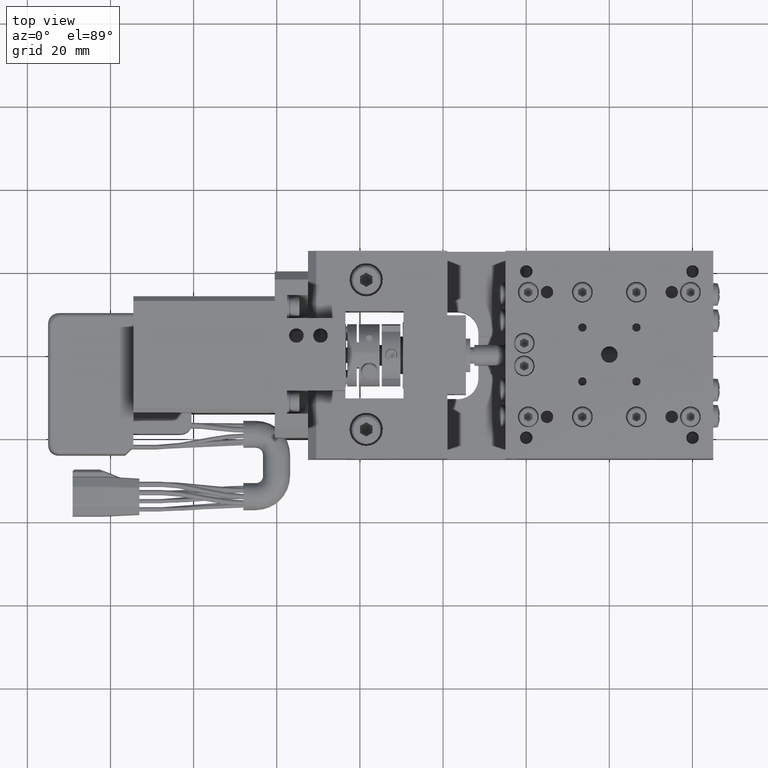
[diagram: clean part render]
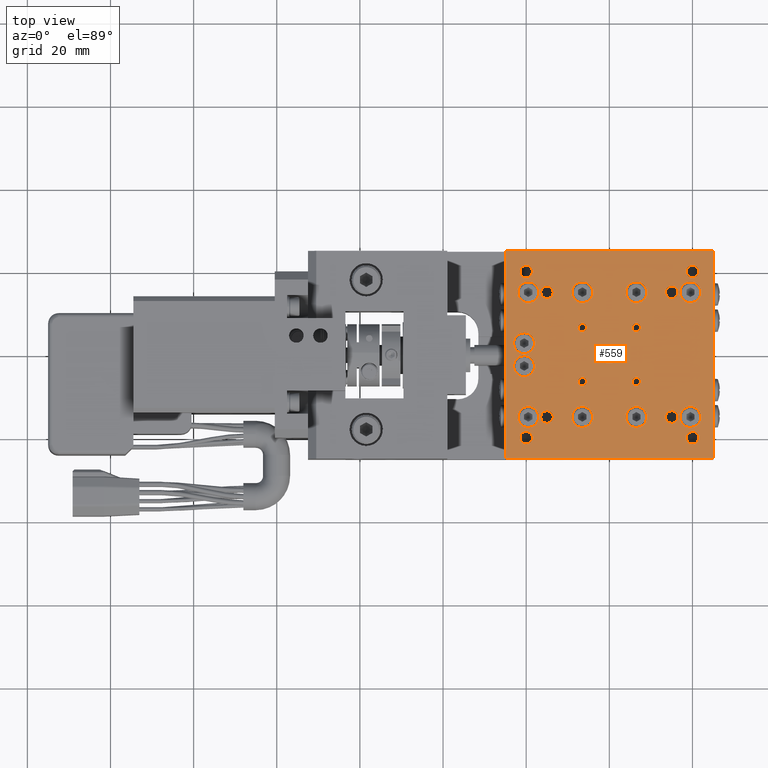
[diagram: same view with one face highlighted and labeled with its STEP entity id]
A machine part, top view. The second image highlights one B-rep face of the part: STEP entity #559.
In plain terms, the highlighted planar face has unit normal (0, 0, 1).
Its self-contained STEP definition (entity closure, byte-faithful):
#559=ADVANCED_FACE('',(#5540,#5541,#5542,#5543,#5544,#5545,#5546,#5547,#5548,#5549,#5550,#5551,#5552,#5553,#5554,#5555,#5556,#5557,#5558,#5559,#5560,#5561,#5562,#5563),#5539,.T.);
#5539=PLANE('',#26777);
#5540=FACE_OUTER_BOUND('',#26778,.T.);
#5541=FACE_BOUND('',#26779,.T.);
#5542=FACE_BOUND('',#26780,.T.);
#5543=FACE_BOUND('',#26781,.T.);
#5544=FACE_BOUND('',#26782,.T.);
#5545=FACE_BOUND('',#26783,.T.);
#5546=FACE_BOUND('',#26784,.T.);
#5547=FACE_BOUND('',#26785,.T.);
#5548=FACE_BOUND('',#26786,.T.);
#5549=FACE_BOUND('',#26787,.T.);
#5550=FACE_BOUND('',#26788,.T.);
#5551=FACE_BOUND('',#26789,.T.);
#5552=FACE_BOUND('',#26790,.T.);
#5553=FACE_BOUND('',#26791,.T.);
#5554=FACE_BOUND('',#26792,.T.);
#5555=FACE_BOUND('',#26793,.T.);
#5556=FACE_BOUND('',#26794,.T.);
#5557=FACE_BOUND('',#26795,.T.);
#5558=FACE_BOUND('',#26796,.T.);
#5559=FACE_BOUND('',#26797,.T.);
#5560=FACE_BOUND('',#26798,.T.);
#5561=FACE_BOUND('',#26799,.T.);
#5562=FACE_BOUND('',#26800,.T.);
#5563=FACE_BOUND('',#26801,.T.);
#26774=CARTESIAN_POINT('',(-2.99999990000E+001,-2.99999980000E+001,2.00000000000E+001));
#26775=DIRECTION('',(0.00000000000E+000,0.00000000000E+000,1.00000000000E+000));
#26776=DIRECTION('',(1.00000000000E+000,0.00000000000E+000,0.00000000000E+000));
#26777=AXIS2_PLACEMENT_3D('',#26774,#26775,#26776);
#26778=EDGE_LOOP('',(#42598,#42599,#42600,#42601));
#26779=EDGE_LOOP('',(#42602,#42603));
#26780=EDGE_LOOP('',(#42604,#42605));
#26781=EDGE_LOOP('',(#42606,#42607));
#26782=EDGE_LOOP('',(#42608,#42609));
#26783=EDGE_LOOP('',(#42610,#42611));
#26784=EDGE_LOOP('',(#42612,#42613));
#26785=EDGE_LOOP('',(#42614,#42615));
#26786=EDGE_LOOP('',(#42616,#42617));
#26787=EDGE_LOOP('',(#42618,#42619));
#26788=EDGE_LOOP('',(#42620,#42621));
#26789=EDGE_LOOP('',(#42622,#42623));
#26790=EDGE_LOOP('',(#42624,#42625));
#26791=EDGE_LOOP('',(#42626,#42627));
#26792=EDGE_LOOP('',(#42628,#42629));
#26793=EDGE_LOOP('',(#42630,#42631));
#26794=EDGE_LOOP('',(#42632,#42633));
#26795=EDGE_LOOP('',(#42634,#42635));
#26796=EDGE_LOOP('',(#42636,#42637));
#26797=EDGE_LOOP('',(#42638,#42639));
#26798=EDGE_LOOP('',(#42640,#42641));
#26799=EDGE_LOOP('',(#42642,#42643));
#26800=EDGE_LOOP('',(#42644,#42645));
#26801=EDGE_LOOP('',(#42646,#42647));
#42598=ORIENTED_EDGE('',*,*,#52463,.F.);
#42599=ORIENTED_EDGE('',*,*,#52662,.F.);
#42600=ORIENTED_EDGE('',*,*,#52483,.T.);
#42601=ORIENTED_EDGE('',*,*,#52430,.T.);
#42602=ORIENTED_EDGE('',*,*,#52751,.F.);
#42603=ORIENTED_EDGE('',*,*,#52752,.F.);
#42604=ORIENTED_EDGE('',*,*,#52753,.F.);
#42605=ORIENTED_EDGE('',*,*,#52754,.F.);
#42606=ORIENTED_EDGE('',*,*,#52755,.F.);
#42607=ORIENTED_EDGE('',*,*,#52756,.F.);
#42608=ORIENTED_EDGE('',*,*,#52757,.F.);
#42609=ORIENTED_EDGE('',*,*,#52758,.F.);
#42610=ORIENTED_EDGE('',*,*,#52759,.F.);
#42611=ORIENTED_EDGE('',*,*,#52760,.F.);
#42612=ORIENTED_EDGE('',*,*,#52761,.F.);
#42613=ORIENTED_EDGE('',*,*,#52762,.F.);
#42614=ORIENTED_EDGE('',*,*,#52763,.F.);
#42615=ORIENTED_EDGE('',*,*,#52764,.F.);
#42616=ORIENTED_EDGE('',*,*,#52765,.F.);
#42617=ORIENTED_EDGE('',*,*,#52766,.F.);
#42618=ORIENTED_EDGE('',*,*,#52767,.F.);
#42619=ORIENTED_EDGE('',*,*,#52768,.F.);
#42620=ORIENTED_EDGE('',*,*,#52769,.F.);
#42621=ORIENTED_EDGE('',*,*,#52770,.F.);
#42622=ORIENTED_EDGE('',*,*,#52771,.F.);
#42623=ORIENTED_EDGE('',*,*,#52772,.F.);
#42624=ORIENTED_EDGE('',*,*,#52773,.F.);
#42625=ORIENTED_EDGE('',*,*,#52774,.F.);
#42626=ORIENTED_EDGE('',*,*,#52775,.T.);
#42627=ORIENTED_EDGE('',*,*,#52776,.T.);
#42628=ORIENTED_EDGE('',*,*,#52777,.T.);
#42629=ORIENTED_EDGE('',*,*,#52778,.T.);
#42630=ORIENTED_EDGE('',*,*,#52779,.T.);
#42631=ORIENTED_EDGE('',*,*,#52780,.T.);
#42632=ORIENTED_EDGE('',*,*,#52781,.T.);
#42633=ORIENTED_EDGE('',*,*,#52782,.T.);
#42634=ORIENTED_EDGE('',*,*,#52783,.T.);
#42635=ORIENTED_EDGE('',*,*,#52784,.T.);
#42636=ORIENTED_EDGE('',*,*,#52785,.F.);
#42637=ORIENTED_EDGE('',*,*,#52786,.F.);
#42638=ORIENTED_EDGE('',*,*,#52787,.T.);
#42639=ORIENTED_EDGE('',*,*,#52788,.T.);
#42640=ORIENTED_EDGE('',*,*,#52789,.T.);
#42641=ORIENTED_EDGE('',*,*,#52790,.T.);
#42642=ORIENTED_EDGE('',*,*,#52791,.T.);
#42643=ORIENTED_EDGE('',*,*,#52792,.T.);
#42644=ORIENTED_EDGE('',*,*,#52793,.T.);
#42645=ORIENTED_EDGE('',*,*,#52794,.T.);
#42646=ORIENTED_EDGE('',*,*,#52795,.T.);
#42647=ORIENTED_EDGE('',*,*,#52796,.T.);
#52430=EDGE_CURVE('',#60784,#60776,#60785,.T.);
#52463=EDGE_CURVE('',#61000,#60776,#61007,.T.);
#52483=EDGE_CURVE('',#61139,#60784,#61140,.T.);
#52662=EDGE_CURVE('',#61139,#61000,#62348,.T.);
#52751=EDGE_CURVE('',#62905,#62906,#62907,.T.);
#52752=EDGE_CURVE('',#62906,#62905,#62913,.T.);
#52753=EDGE_CURVE('',#62919,#62920,#62921,.T.);
#52754=EDGE_CURVE('',#62920,#62919,#62927,.T.);
#52755=EDGE_CURVE('',#62933,#62934,#62935,.T.);
#52756=EDGE_CURVE('',#62934,#62933,#62941,.T.);
#52757=EDGE_CURVE('',#62947,#62948,#62949,.T.);
#52758=EDGE_CURVE('',#62948,#62947,#62955,.T.);
#52759=EDGE_CURVE('',#62961,#62962,#62963,.T.);
#52760=EDGE_CURVE('',#62962,#62961,#62969,.T.);
#52761=EDGE_CURVE('',#62975,#62976,#62977,.T.);
#52762=EDGE_CURVE('',#62976,#62975,#62983,.T.);
#52763=EDGE_CURVE('',#62989,#62990,#62991,.T.);
#52764=EDGE_CURVE('',#62990,#62989,#62997,.T.);
#52765=EDGE_CURVE('',#63003,#63004,#63005,.T.);
#52766=EDGE_CURVE('',#63004,#63003,#63011,.T.);
#52767=EDGE_CURVE('',#63017,#63018,#63019,.T.);
#52768=EDGE_CURVE('',#63018,#63017,#63025,.T.);
#52769=EDGE_CURVE('',#63031,#63032,#63033,.T.);
#52770=EDGE_CURVE('',#63032,#63031,#63039,.T.);
#52771=EDGE_CURVE('',#63045,#63046,#63047,.T.);
#52772=EDGE_CURVE('',#63046,#63045,#63053,.T.);
#52773=EDGE_CURVE('',#63059,#63060,#63061,.T.);
#52774=EDGE_CURVE('',#63060,#63059,#63067,.T.);
#52775=EDGE_CURVE('',#63073,#63074,#63075,.T.);
#52776=EDGE_CURVE('',#63074,#63073,#63081,.T.);
#52777=EDGE_CURVE('',#63087,#63088,#63089,.T.);
#52778=EDGE_CURVE('',#63088,#63087,#63095,.T.);
#52779=EDGE_CURVE('',#63101,#63102,#63103,.T.);
#52780=EDGE_CURVE('',#63102,#63101,#63109,.T.);
#52781=EDGE_CURVE('',#63115,#63116,#63117,.T.);
#52782=EDGE_CURVE('',#63116,#63115,#63123,.T.);
#52783=EDGE_CURVE('',#63129,#63130,#63131,.T.);
#52784=EDGE_CURVE('',#63130,#63129,#63137,.T.);
#52785=EDGE_CURVE('',#63143,#63144,#63145,.T.);
#52786=EDGE_CURVE('',#63144,#63143,#63151,.T.);
#52787=EDGE_CURVE('',#63157,#63158,#63159,.T.);
#52788=EDGE_CURVE('',#63158,#63157,#63165,.T.);
#52789=EDGE_CURVE('',#63171,#63172,#63173,.T.);
#52790=EDGE_CURVE('',#63172,#63171,#63179,.T.);
#52791=EDGE_CURVE('',#63185,#63186,#63187,.T.);
#52792=EDGE_CURVE('',#63186,#63185,#63193,.T.);
#52793=EDGE_CURVE('',#63199,#63200,#63201,.T.);
#52794=EDGE_CURVE('',#63200,#63199,#63207,.T.);
#52795=EDGE_CURVE('',#63213,#63214,#63215,.T.);
#52796=EDGE_CURVE('',#63214,#63213,#63221,.T.);
#60776=VERTEX_POINT('',#94469);
#60784=VERTEX_POINT('',#94474);
#60785=LINE('',#94475,#94476);
#61000=VERTEX_POINT('',#94612);
#61007=LINE('',#94616,#94617);
#61139=VERTEX_POINT('',#94692);
#61140=LINE('',#94693,#94694);
#62348=LINE('',#95535,#95536);
#62905=VERTEX_POINT('',#95907);
#62906=VERTEX_POINT('',#95908);
#62907=CIRCLE('',#95912,1.00000000000E+000);
#62913=CIRCLE('',#95916,1.00000000000E+000);
#62919=VERTEX_POINT('',#95917);
#62920=VERTEX_POINT('',#95918);
#62921=CIRCLE('',#95922,1.00000000000E+000);
#62927=CIRCLE('',#95926,1.00000000000E+000);
#62933=VERTEX_POINT('',#95927);
#62934=VERTEX_POINT('',#95928);
#62935=CIRCLE('',#95932,1.50000000000E+000);
#62941=CIRCLE('',#95936,1.50000000000E+000);
#62947=VERTEX_POINT('',#95937);
#62948=VERTEX_POINT('',#95938);
#62949=CIRCLE('',#95942,1.50000000000E+000);
#62955=CIRCLE('',#95946,1.50000000000E+000);
#62961=VERTEX_POINT('',#95947);
#62962=VERTEX_POINT('',#95948);
#62963=CIRCLE('',#95952,1.50000000000E+000);
#62969=CIRCLE('',#95956,1.50000000000E+000);
#62975=VERTEX_POINT('',#95957);
#62976=VERTEX_POINT('',#95958);
#62977=CIRCLE('',#95962,1.50000000000E+000);
#62983=CIRCLE('',#95966,1.50000000000E+000);
#62989=VERTEX_POINT('',#95967);
#62990=VERTEX_POINT('',#95968);
#62991=CIRCLE('',#95972,1.50000000000E+000);
#62997=CIRCLE('',#95976,1.50000000000E+000);
#63003=VERTEX_POINT('',#95977);
#63004=VERTEX_POINT('',#95978);
#63005=CIRCLE('',#95982,1.50000000000E+000);
#63011=CIRCLE('',#95986,1.50000000000E+000);
#63017=VERTEX_POINT('',#95987);
#63018=VERTEX_POINT('',#95988);
#63019=CIRCLE('',#95992,1.50000000000E+000);
#63025=CIRCLE('',#95996,1.50000000000E+000);
#63031=VERTEX_POINT('',#95997);
#63032=VERTEX_POINT('',#95998);
#63033=CIRCLE('',#96002,1.50000000000E+000);
#63039=CIRCLE('',#96006,1.50000000000E+000);
#63045=VERTEX_POINT('',#96007);
#63046=VERTEX_POINT('',#96008);
#63047=CIRCLE('',#96012,1.00000000000E+000);
#63053=CIRCLE('',#96016,1.00000000000E+000);
#63059=VERTEX_POINT('',#96017);
#63060=VERTEX_POINT('',#96018);
#63061=CIRCLE('',#96022,2.00000000000E+000);
#63067=CIRCLE('',#96026,2.00000000000E+000);
#63073=VERTEX_POINT('',#96027);
#63074=VERTEX_POINT('',#96028);
#63075=CIRCLE('',#96032,2.50000000000E+000);
#63081=CIRCLE('',#96036,2.50000000000E+000);
#63087=VERTEX_POINT('',#96037);
#63088=VERTEX_POINT('',#96038);
#63089=CIRCLE('',#96042,2.50000000000E+000);
#63095=CIRCLE('',#96046,2.50000000000E+000);
#63101=VERTEX_POINT('',#96047);
#63102=VERTEX_POINT('',#96048);
#63103=CIRCLE('',#96052,2.50000000000E+000);
#63109=CIRCLE('',#96056,2.50000000000E+000);
#63115=VERTEX_POINT('',#96057);
#63116=VERTEX_POINT('',#96058);
#63117=CIRCLE('',#96062,2.50000000000E+000);
#63123=CIRCLE('',#96066,2.50000000000E+000);
#63129=VERTEX_POINT('',#96067);
#63130=VERTEX_POINT('',#96068);
#63131=CIRCLE('',#96072,2.50000000000E+000);
#63137=CIRCLE('',#96076,2.50000000000E+000);
#63143=VERTEX_POINT('',#96077);
#63144=VERTEX_POINT('',#96078);
#63145=CIRCLE('',#96082,1.00000000000E+000);
#63151=CIRCLE('',#96086,1.00000000000E+000);
#63157=VERTEX_POINT('',#96087);
#63158=VERTEX_POINT('',#96088);
#63159=CIRCLE('',#96092,2.50000000000E+000);
#63165=CIRCLE('',#96096,2.50000000000E+000);
#63171=VERTEX_POINT('',#96097);
#63172=VERTEX_POINT('',#96098);
#63173=CIRCLE('',#96102,2.50000000000E+000);
#63179=CIRCLE('',#96106,2.50000000000E+000);
#63185=VERTEX_POINT('',#96107);
#63186=VERTEX_POINT('',#96108);
#63187=CIRCLE('',#96112,2.50000000000E+000);
#63193=CIRCLE('',#96116,2.50000000000E+000);
#63199=VERTEX_POINT('',#96117);
#63200=VERTEX_POINT('',#96118);
#63201=CIRCLE('',#96122,2.50000000000E+000);
#63207=CIRCLE('',#96126,2.50000000000E+000);
#63213=VERTEX_POINT('',#96127);
#63214=VERTEX_POINT('',#96128);
#63215=CIRCLE('',#96132,2.50000000000E+000);
#63221=CIRCLE('',#96136,2.50000000000E+000);
#94469=CARTESIAN_POINT('',(-2.49999990000E+001,2.50000020000E+001,2.00000000000E+001));
#94474=CARTESIAN_POINT('',(2.50000010000E+001,2.50000020000E+001,2.00000000000E+001));
#94475=CARTESIAN_POINT('',(2.50000010000E+001,2.50000020000E+001,2.00000000000E+001));
#94476=VECTOR('',#94477,5.00000000000E+001);
#94477=DIRECTION('',(-1.00000000000E+000,0.00000000000E+000,0.00000000000E+000));
#94612=CARTESIAN_POINT('',(-2.49999990000E+001,-2.49999980000E+001,2.00000000000E+001));
#94616=CARTESIAN_POINT('',(-2.49999990000E+001,-2.49999980000E+001,2.00000000000E+001));
#94617=VECTOR('',#94618,5.00000000000E+001);
#94618=DIRECTION('',(0.00000000000E+000,1.00000000000E+000,0.00000000000E+000));
#94692=CARTESIAN_POINT('',(2.50000010000E+001,-2.49999980000E+001,2.00000000000E+001));
#94693=CARTESIAN_POINT('',(2.50000010000E+001,-2.49999980000E+001,2.00000000000E+001));
#94694=VECTOR('',#94695,5.00000000000E+001);
#94695=DIRECTION('',(0.00000000000E+000,1.00000000000E+000,0.00000000000E+000));
#95535=CARTESIAN_POINT('',(2.50000010000E+001,-2.49999980000E+001,2.00000000000E+001));
#95536=VECTOR('',#95537,5.00000000000E+001);
#95537=DIRECTION('',(-1.00000000000E+000,0.00000000000E+000,0.00000000000E+000));
#95907=CARTESIAN_POINT('',(5.50839079559E+000,6.62926608051E+000,2.00000000000E+001));
#95908=CARTESIAN_POINT('',(7.49161120441E+000,6.37073791949E+000,2.00000000000E+001));
#95909=CARTESIAN_POINT('',(6.50000100000E+000,6.50000200000E+000,2.00000000000E+001));
#95910=DIRECTION('',(0.00000000000E+000,0.00000000000E+000,1.00000000000E+000));
#95911=DIRECTION('',(9.91610204410E-001,-1.29264080513E-001,0.00000000000E+000));
#95912=AXIS2_PLACEMENT_3D('',#95909,#95910,#95911);
#95913=CARTESIAN_POINT('',(6.50000100000E+000,6.50000200000E+000,2.00000000000E+001));
#95914=DIRECTION('',(0.00000000000E+000,0.00000000000E+000,1.00000000000E+000));
#95915=DIRECTION('',(9.91610204410E-001,-1.29264080513E-001,0.00000000000E+000));
#95916=AXIS2_PLACEMENT_3D('',#95913,#95914,#95915);
#95917=CARTESIAN_POINT('',(-5.50748860551E+000,6.62206220966E+000,2.00000000000E+001));
#95918=CARTESIAN_POINT('',(-7.49250939449E+000,6.37774179034E+000,2.00000000000E+001));
#95919=CARTESIAN_POINT('',(-6.49999900000E+000,6.49990200000E+000,2.00000000000E+001));
#95920=DIRECTION('',(0.00000000000E+000,0.00000000000E+000,1.00000000000E+000));
#95921=DIRECTION('',(-9.92510394493E-001,-1.22160209658E-001,0.00000000000E+000));
#95922=AXIS2_PLACEMENT_3D('',#95919,#95920,#95921);
#95923=CARTESIAN_POINT('',(-6.49999900000E+000,6.49990200000E+000,2.00000000000E+001));
#95924=DIRECTION('',(0.00000000000E+000,0.00000000000E+000,1.00000000000E+000));
#95925=DIRECTION('',(-9.92510394493E-001,-1.22160209658E-001,0.00000000000E+000));
#95926=AXIS2_PLACEMENT_3D('',#95923,#95924,#95925);
#95927=CARTESIAN_POINT('',(-2.00674000094E+001,1.85015170638E+001,2.00000000000E+001));
#95928=CARTESIAN_POINT('',(-1.99325979906E+001,2.14984869362E+001,2.00000000000E+001));
#95929=CARTESIAN_POINT('',(-1.99999990000E+001,2.00000020000E+001,2.00000000000E+001));
#95930=DIRECTION('',(-2.38484496113E-016,1.80334912311E-015,1.00000000000E+000));
#95931=DIRECTION('',(4.49340062684E-002,9.98989957447E-001,-1.79081159992E-015));
#95932=AXIS2_PLACEMENT_3D('',#95929,#95930,#95931);
#95933=CARTESIAN_POINT('',(-1.99999990000E+001,2.00000020000E+001,2.00000000000E+001));
#95934=DIRECTION('',(-2.38484496113E-016,1.80334912311E-015,1.00000000000E+000));
#95935=DIRECTION('',(4.49340062684E-002,9.98989957447E-001,-1.79081159992E-015));
#95936=AXIS2_PLACEMENT_3D('',#95933,#95934,#95935);
#95937=CARTESIAN_POINT('',(-1.51508760977E+001,1.35076092563E+001,2.00000000000E+001));
#95938=CARTESIAN_POINT('',(-1.48491219023E+001,1.64923947437E+001,2.00000000000E+001));
#95939=CARTESIAN_POINT('',(-1.49999990000E+001,1.50000020000E+001,2.00000000000E+001));
#95940=DIRECTION('',(-5.33847325685E-016,5.37761876182E-015,1.00000000000E+000));
#95941=DIRECTION('',(1.00584731795E-001,9.94928495787E-001,-5.29664925554E-015));
#95942=AXIS2_PLACEMENT_3D('',#95939,#95940,#95941);
#95943=CARTESIAN_POINT('',(-1.49999990000E+001,1.50000020000E+001,2.00000000000E+001));
#95944=DIRECTION('',(-5.33847325685E-016,5.37761876182E-015,1.00000000000E+000));
#95945=DIRECTION('',(1.00584731795E-001,9.94928495787E-001,-5.29664925554E-015));
#95946=AXIS2_PLACEMENT_3D('',#95943,#95944,#95945);
#95947=CARTESIAN_POINT('',(1.85015160638E+001,2.00674030094E+001,2.00000000000E+001));
#95948=CARTESIAN_POINT('',(2.14984859362E+001,1.99326009906E+001,2.00000000000E+001));
#95949=CARTESIAN_POINT('',(2.00000010000E+001,2.00000020000E+001,2.00000000000E+001));
#95950=DIRECTION('',(1.80334912311E-015,2.38484496113E-016,1.00000000000E+000));
#95951=DIRECTION('',(9.98989957447E-001,-4.49340062684E-002,-1.79081159992E-015));
#95952=AXIS2_PLACEMENT_3D('',#95949,#95950,#95951);
#95953=CARTESIAN_POINT('',(2.00000010000E+001,2.00000020000E+001,2.00000000000E+001));
#95954=DIRECTION('',(1.80334912311E-015,2.38484496113E-016,1.00000000000E+000));
#95955=DIRECTION('',(9.98989957447E-001,-4.49340062684E-002,-1.79081159992E-015));
#95956=AXIS2_PLACEMENT_3D('',#95953,#95954,#95955);
#95957=CARTESIAN_POINT('',(1.35076082563E+001,1.51508790977E+001,2.00000000000E+001));
#95958=CARTESIAN_POINT('',(1.64923937437E+001,1.48491249023E+001,2.00000000000E+001));
#95959=CARTESIAN_POINT('',(1.50000010000E+001,1.50000020000E+001,2.00000000000E+001));
#95960=DIRECTION('',(5.37761876182E-015,5.33847325685E-016,1.00000000000E+000));
#95961=DIRECTION('',(9.94928495787E-001,-1.00584731795E-001,-5.29664925554E-015));
#95962=AXIS2_PLACEMENT_3D('',#95959,#95960,#95961);
#95963=CARTESIAN_POINT('',(1.50000010000E+001,1.50000020000E+001,2.00000000000E+001));
#95964=DIRECTION('',(5.37761876182E-015,5.33847325685E-016,1.00000000000E+000));
#95965=DIRECTION('',(9.94928495787E-001,-1.00584731795E-001,-5.29664925554E-015));
#95966=AXIS2_PLACEMENT_3D('',#95963,#95964,#95965);
#95967=CARTESIAN_POINT('',(2.00674020094E+001,-1.85015130638E+001,2.00000000000E+001));
#95968=CARTESIAN_POINT('',(1.99325999906E+001,-2.14984829362E+001,2.00000000000E+001));
#95969=CARTESIAN_POINT('',(2.00000010000E+001,-1.99999980000E+001,2.00000000000E+001));
#95970=DIRECTION('',(2.38484496113E-016,-1.80334912311E-015,1.00000000000E+000));
#95971=DIRECTION('',(-4.49340062684E-002,-9.98989957447E-001,-1.79081159992E-015));
#95972=AXIS2_PLACEMENT_3D('',#95969,#95970,#95971);
#95973=CARTESIAN_POINT('',(2.00000010000E+001,-1.99999980000E+001,2.00000000000E+001));
#95974=DIRECTION('',(2.38484496113E-016,-1.80334912311E-015,1.00000000000E+000));
#95975=DIRECTION('',(-4.49340062684E-002,-9.98989957447E-001,-1.79081159992E-015));
#95976=AXIS2_PLACEMENT_3D('',#95973,#95974,#95975);
#95977=CARTESIAN_POINT('',(1.51508780977E+001,-1.35076052563E+001,2.00000000000E+001));
#95978=CARTESIAN_POINT('',(1.48491239023E+001,-1.64923907437E+001,2.00000000000E+001));
#95979=CARTESIAN_POINT('',(1.50000010000E+001,-1.49999980000E+001,2.00000000000E+001));
#95980=DIRECTION('',(5.33847325685E-016,-5.37761876182E-015,1.00000000000E+000));
#95981=DIRECTION('',(-1.00584731795E-001,-9.94928495787E-001,-5.29664925554E-015));
#95982=AXIS2_PLACEMENT_3D('',#95979,#95980,#95981);
#95983=CARTESIAN_POINT('',(1.50000010000E+001,-1.49999980000E+001,2.00000000000E+001));
#95984=DIRECTION('',(5.33847325685E-016,-5.37761876182E-015,1.00000000000E+000));
#95985=DIRECTION('',(-1.00584731795E-001,-9.94928495787E-001,-5.29664925554E-015));
#95986=AXIS2_PLACEMENT_3D('',#95983,#95984,#95985);
#95987=CARTESIAN_POINT('',(-1.85015140638E+001,-2.00673990094E+001,2.00000000000E+001));
#95988=CARTESIAN_POINT('',(-2.14984839362E+001,-1.99325969906E+001,2.00000000000E+001));
#95989=CARTESIAN_POINT('',(-1.99999990000E+001,-1.99999980000E+001,2.00000000000E+001));
#95990=DIRECTION('',(-1.80334912311E-015,-2.38484496113E-016,1.00000000000E+000));
#95991=DIRECTION('',(-9.98989957447E-001,4.49340062684E-002,-1.79081159992E-015));
#95992=AXIS2_PLACEMENT_3D('',#95989,#95990,#95991);
#95993=CARTESIAN_POINT('',(-1.99999990000E+001,-1.99999980000E+001,2.00000000000E+001));
#95994=DIRECTION('',(-1.80334912311E-015,-2.38484496113E-016,1.00000000000E+000));
#95995=DIRECTION('',(-9.98989957447E-001,4.49340062684E-002,-1.79081159992E-015));
#95996=AXIS2_PLACEMENT_3D('',#95993,#95994,#95995);
#95997=CARTESIAN_POINT('',(-1.35076062563E+001,-1.51508750977E+001,2.00000000000E+001));
#95998=CARTESIAN_POINT('',(-1.64923917437E+001,-1.48491209023E+001,2.00000000000E+001));
#95999=CARTESIAN_POINT('',(-1.49999990000E+001,-1.49999980000E+001,2.00000000000E+001));
#96000=DIRECTION('',(-5.37761876182E-015,-5.33847325685E-016,1.00000000000E+000));
#96001=DIRECTION('',(-9.94928495787E-001,1.00584731795E-001,-5.29664925554E-015));
#96002=AXIS2_PLACEMENT_3D('',#95999,#96000,#96001);
#96003=CARTESIAN_POINT('',(-1.49999990000E+001,-1.49999980000E+001,2.00000000000E+001));
#96004=DIRECTION('',(-5.37761876182E-015,-5.33847325685E-016,1.00000000000E+000));
#96005=DIRECTION('',(-9.94928495787E-001,1.00584731795E-001,-5.29664925554E-015));
#96006=AXIS2_PLACEMENT_3D('',#96003,#96004,#96005);
#96007=CARTESIAN_POINT('',(-5.52996466728E+000,-6.25693011460E+000,2.00000000000E+001));
#96008=CARTESIAN_POINT('',(-7.47003333272E+000,-6.74286588540E+000,2.00000000000E+001));
#96009=CARTESIAN_POINT('',(-6.49999900000E+000,-6.49989800000E+000,2.00000000000E+001));
#96010=DIRECTION('',(0.00000000000E+000,0.00000000000E+000,1.00000000000E+000));
#96011=DIRECTION('',(-9.70034332725E-001,-2.42967885399E-001,0.00000000000E+000));
#96012=AXIS2_PLACEMENT_3D('',#96009,#96010,#96011);
#96013=CARTESIAN_POINT('',(-6.49999900000E+000,-6.49989800000E+000,2.00000000000E+001));
#96014=DIRECTION('',(0.00000000000E+000,0.00000000000E+000,1.00000000000E+000));
#96015=DIRECTION('',(-9.70034332725E-001,-2.42967885399E-001,0.00000000000E+000));
#96016=AXIS2_PLACEMENT_3D('',#96013,#96014,#96015);
#96017=CARTESIAN_POINT('',(2.00000100000E+000,2.00000000894E-006,2.00000000000E+001));
#96018=CARTESIAN_POINT('',(-1.99999900000E+000,2.00000000916E-006,2.00000000000E+001));
#96019=CARTESIAN_POINT('',(9.99999997475E-007,2.00000000916E-006,2.00000000000E+001));
#96020=DIRECTION('',(5.19815461916E-015,-8.75811540203E-047,1.00000000000E+000));
#96021=DIRECTION('',(-1.00000000000E+000,1.22464679915E-016,5.19815461916E-015));
#96022=AXIS2_PLACEMENT_3D('',#96019,#96020,#96021);
#96023=CARTESIAN_POINT('',(9.99999997475E-007,2.00000000916E-006,2.00000000000E+001));
#96024=DIRECTION('',(5.19815461916E-015,-8.75811540203E-047,1.00000000000E+000));
#96025=DIRECTION('',(-1.00000000000E+000,1.22464679915E-016,5.19815461916E-015));
#96026=AXIS2_PLACEMENT_3D('',#96023,#96024,#96025);
#96027=CARTESIAN_POINT('',(-6.49999900000E+000,1.75000020000E+001,2.00000000000E+001));
#96028=CARTESIAN_POINT('',(-6.49999900000E+000,1.25000020000E+001,2.00000000000E+001));
#96029=CARTESIAN_POINT('',(-6.49999900000E+000,1.50000020000E+001,2.00000000000E+001));
#96030=DIRECTION('',(0.00000000000E+000,0.00000000000E+000,-1.00000000000E+000));
#96031=DIRECTION('',(-1.22464679915E-016,1.00000000000E+000,0.00000000000E+000));
#96032=AXIS2_PLACEMENT_3D('',#96029,#96030,#96031);
#96033=CARTESIAN_POINT('',(-6.49999900000E+000,1.50000020000E+001,2.00000000000E+001));
#96034=DIRECTION('',(0.00000000000E+000,0.00000000000E+000,-1.00000000000E+000));
#96035=DIRECTION('',(-1.22464679915E-016,1.00000000000E+000,0.00000000000E+000));
#96036=AXIS2_PLACEMENT_3D('',#96033,#96034,#96035);
#96037=CARTESIAN_POINT('',(1.95000010000E+001,1.75000020000E+001,2.00000000000E+001));
#96038=CARTESIAN_POINT('',(1.95000010000E+001,1.25000020000E+001,2.00000000000E+001));
#96039=CARTESIAN_POINT('',(1.95000010000E+001,1.50000020000E+001,2.00000000000E+001));
#96040=DIRECTION('',(0.00000000000E+000,0.00000000000E+000,-1.00000000000E+000));
#96041=DIRECTION('',(-1.22464679915E-016,1.00000000000E+000,0.00000000000E+000));
#96042=AXIS2_PLACEMENT_3D('',#96039,#96040,#96041);
#96043=CARTESIAN_POINT('',(1.95000010000E+001,1.50000020000E+001,2.00000000000E+001));
#96044=DIRECTION('',(0.00000000000E+000,0.00000000000E+000,-1.00000000000E+000));
#96045=DIRECTION('',(-1.22464679915E-016,1.00000000000E+000,0.00000000000E+000));
#96046=AXIS2_PLACEMENT_3D('',#96043,#96044,#96045);
#96047=CARTESIAN_POINT('',(6.50000100000E+000,-1.24999980000E+001,2.00000000000E+001));
#96048=CARTESIAN_POINT('',(6.50000100000E+000,-1.74999980000E+001,2.00000000000E+001));
#96049=CARTESIAN_POINT('',(6.50000100000E+000,-1.49999980000E+001,2.00000000000E+001));
#96050=DIRECTION('',(0.00000000000E+000,0.00000000000E+000,-1.00000000000E+000));
#96051=DIRECTION('',(-1.22464679915E-016,1.00000000000E+000,0.00000000000E+000));
#96052=AXIS2_PLACEMENT_3D('',#96049,#96050,#96051);
#96053=CARTESIAN_POINT('',(6.50000100000E+000,-1.49999980000E+001,2.00000000000E+001));
#96054=DIRECTION('',(0.00000000000E+000,0.00000000000E+000,-1.00000000000E+000));
#96055=DIRECTION('',(-1.22464679915E-016,1.00000000000E+000,0.00000000000E+000));
#96056=AXIS2_PLACEMENT_3D('',#96053,#96054,#96055);
#96057=CARTESIAN_POINT('',(-1.94999990000E+001,-1.24999980000E+001,2.00000000000E+001));
#96058=CARTESIAN_POINT('',(-1.94999990000E+001,-1.74999980000E+001,2.00000000000E+001));
#96059=CARTESIAN_POINT('',(-1.94999990000E+001,-1.49999980000E+001,2.00000000000E+001));
#96060=DIRECTION('',(0.00000000000E+000,0.00000000000E+000,-1.00000000000E+000));
#96061=DIRECTION('',(-1.22464679915E-016,1.00000000000E+000,0.00000000000E+000));
#96062=AXIS2_PLACEMENT_3D('',#96059,#96060,#96061);
#96063=CARTESIAN_POINT('',(-1.94999990000E+001,-1.49999980000E+001,2.00000000000E+001));
#96064=DIRECTION('',(0.00000000000E+000,0.00000000000E+000,-1.00000000000E+000));
#96065=DIRECTION('',(-1.22464679915E-016,1.00000000000E+000,0.00000000000E+000));
#96066=AXIS2_PLACEMENT_3D('',#96063,#96064,#96065);
#96067=CARTESIAN_POINT('',(-2.04999990000E+001,-2.49998000000E-001,2.00000000000E+001));
#96068=CARTESIAN_POINT('',(-2.04999990000E+001,-5.24999800000E+000,2.00000000000E+001));
#96069=CARTESIAN_POINT('',(-2.04999990000E+001,-2.74999800000E+000,2.00000000000E+001));
#96070=DIRECTION('',(0.00000000000E+000,0.00000000000E+000,-1.00000000000E+000));
#96071=DIRECTION('',(-1.22464679915E-016,1.00000000000E+000,0.00000000000E+000));
#96072=AXIS2_PLACEMENT_3D('',#96069,#96070,#96071);
#96073=CARTESIAN_POINT('',(-2.04999990000E+001,-2.74999800000E+000,2.00000000000E+001));
#96074=DIRECTION('',(0.00000000000E+000,0.00000000000E+000,-1.00000000000E+000));
#96075=DIRECTION('',(-1.22464679915E-016,1.00000000000E+000,0.00000000000E+000));
#96076=AXIS2_PLACEMENT_3D('',#96073,#96074,#96075);
#96077=CARTESIAN_POINT('',(5.51162930235E+000,-6.34794081575E+000,2.00000000000E+001));
#96078=CARTESIAN_POINT('',(7.48837269765E+000,-6.65205518425E+000,2.00000000000E+001));
#96079=CARTESIAN_POINT('',(6.50000100000E+000,-6.49999800000E+000,2.00000000000E+001));
#96080=DIRECTION('',(0.00000000000E+000,0.00000000000E+000,1.00000000000E+000));
#96081=DIRECTION('',(9.88371697651E-001,-1.52057184254E-001,0.00000000000E+000));
#96082=AXIS2_PLACEMENT_3D('',#96079,#96080,#96081);
#96083=CARTESIAN_POINT('',(6.50000100000E+000,-6.49999800000E+000,2.00000000000E+001));
#96084=DIRECTION('',(0.00000000000E+000,0.00000000000E+000,1.00000000000E+000));
#96085=DIRECTION('',(9.88371697651E-001,-1.52057184254E-001,0.00000000000E+000));
#96086=AXIS2_PLACEMENT_3D('',#96083,#96084,#96085);
#96087=CARTESIAN_POINT('',(-2.04999990000E+001,5.25000200000E+000,2.00000000000E+001));
#96088=CARTESIAN_POINT('',(-2.04999990000E+001,2.50002000000E-001,2.00000000000E+001));
#96089=CARTESIAN_POINT('',(-2.04999990000E+001,2.75000200000E+000,2.00000000000E+001));
#96090=DIRECTION('',(0.00000000000E+000,0.00000000000E+000,-1.00000000000E+000));
#96091=DIRECTION('',(-1.22464679915E-016,1.00000000000E+000,0.00000000000E+000));
#96092=AXIS2_PLACEMENT_3D('',#96089,#96090,#96091);
#96093=CARTESIAN_POINT('',(-2.04999990000E+001,2.75000200000E+000,2.00000000000E+001));
#96094=DIRECTION('',(0.00000000000E+000,0.00000000000E+000,-1.00000000000E+000));
#96095=DIRECTION('',(-1.22464679915E-016,1.00000000000E+000,0.00000000000E+000));
#96096=AXIS2_PLACEMENT_3D('',#96093,#96094,#96095);
#96097=CARTESIAN_POINT('',(-6.49999900000E+000,-1.24999980000E+001,2.00000000000E+001));
#96098=CARTESIAN_POINT('',(-6.49999900000E+000,-1.74999980000E+001,2.00000000000E+001));
#96099=CARTESIAN_POINT('',(-6.49999900000E+000,-1.49999980000E+001,2.00000000000E+001));
#96100=DIRECTION('',(0.00000000000E+000,0.00000000000E+000,-1.00000000000E+000));
#96101=DIRECTION('',(-1.22464679915E-016,1.00000000000E+000,0.00000000000E+000));
#96102=AXIS2_PLACEMENT_3D('',#96099,#96100,#96101);
#96103=CARTESIAN_POINT('',(-6.49999900000E+000,-1.49999980000E+001,2.00000000000E+001));
#96104=DIRECTION('',(0.00000000000E+000,0.00000000000E+000,-1.00000000000E+000));
#96105=DIRECTION('',(-1.22464679915E-016,1.00000000000E+000,0.00000000000E+000));
#96106=AXIS2_PLACEMENT_3D('',#96103,#96104,#96105);
#96107=CARTESIAN_POINT('',(1.95000010000E+001,-1.24999980000E+001,2.00000000000E+001));
#96108=CARTESIAN_POINT('',(1.95000010000E+001,-1.74999980000E+001,2.00000000000E+001));
#96109=CARTESIAN_POINT('',(1.95000010000E+001,-1.49999980000E+001,2.00000000000E+001));
#96110=DIRECTION('',(0.00000000000E+000,0.00000000000E+000,-1.00000000000E+000));
#96111=DIRECTION('',(-1.22464679915E-016,1.00000000000E+000,0.00000000000E+000));
#96112=AXIS2_PLACEMENT_3D('',#96109,#96110,#96111);
#96113=CARTESIAN_POINT('',(1.95000010000E+001,-1.49999980000E+001,2.00000000000E+001));
#96114=DIRECTION('',(0.00000000000E+000,0.00000000000E+000,-1.00000000000E+000));
#96115=DIRECTION('',(-1.22464679915E-016,1.00000000000E+000,0.00000000000E+000));
#96116=AXIS2_PLACEMENT_3D('',#96113,#96114,#96115);
#96117=CARTESIAN_POINT('',(6.50000100000E+000,1.75000020000E+001,2.00000000000E+001));
#96118=CARTESIAN_POINT('',(6.50000100000E+000,1.25000020000E+001,2.00000000000E+001));
#96119=CARTESIAN_POINT('',(6.50000100000E+000,1.50000020000E+001,2.00000000000E+001));
#96120=DIRECTION('',(0.00000000000E+000,0.00000000000E+000,-1.00000000000E+000));
#96121=DIRECTION('',(-1.22464679915E-016,1.00000000000E+000,0.00000000000E+000));
#96122=AXIS2_PLACEMENT_3D('',#96119,#96120,#96121);
#96123=CARTESIAN_POINT('',(6.50000100000E+000,1.50000020000E+001,2.00000000000E+001));
#96124=DIRECTION('',(0.00000000000E+000,0.00000000000E+000,-1.00000000000E+000));
#96125=DIRECTION('',(-1.22464679915E-016,1.00000000000E+000,0.00000000000E+000));
#96126=AXIS2_PLACEMENT_3D('',#96123,#96124,#96125);
#96127=CARTESIAN_POINT('',(-1.94999990000E+001,1.75000020000E+001,2.00000000000E+001));
#96128=CARTESIAN_POINT('',(-1.94999990000E+001,1.25000020000E+001,2.00000000000E+001));
#96129=CARTESIAN_POINT('',(-1.94999990000E+001,1.50000020000E+001,2.00000000000E+001));
#96130=DIRECTION('',(0.00000000000E+000,0.00000000000E+000,-1.00000000000E+000));
#96131=DIRECTION('',(-1.22464679915E-016,1.00000000000E+000,0.00000000000E+000));
#96132=AXIS2_PLACEMENT_3D('',#96129,#96130,#96131);
#96133=CARTESIAN_POINT('',(-1.94999990000E+001,1.50000020000E+001,2.00000000000E+001));
#96134=DIRECTION('',(0.00000000000E+000,0.00000000000E+000,-1.00000000000E+000));
#96135=DIRECTION('',(-1.22464679915E-016,1.00000000000E+000,0.00000000000E+000));
#96136=AXIS2_PLACEMENT_3D('',#96133,#96134,#96135);